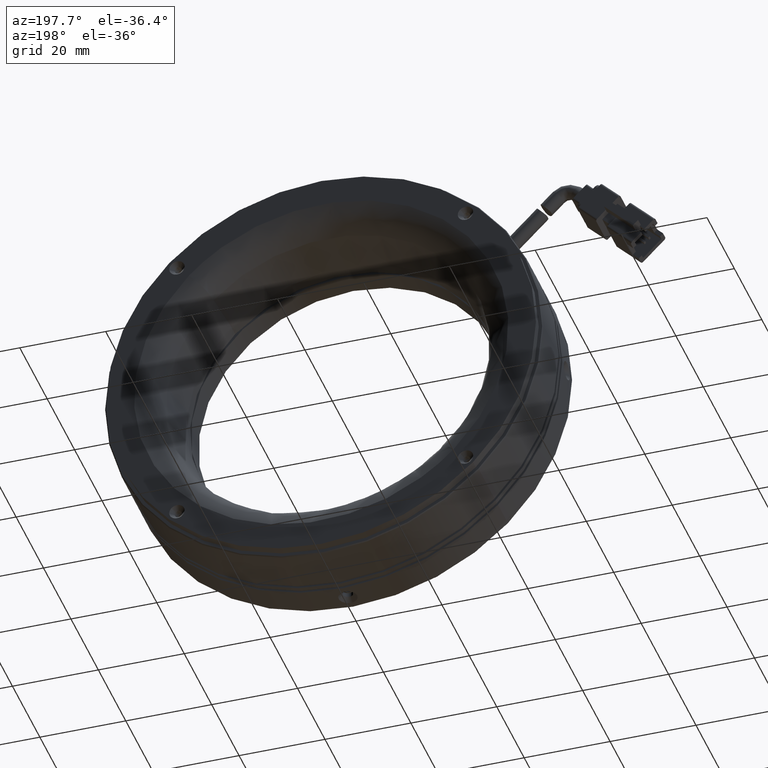
[diagram: clean part render]
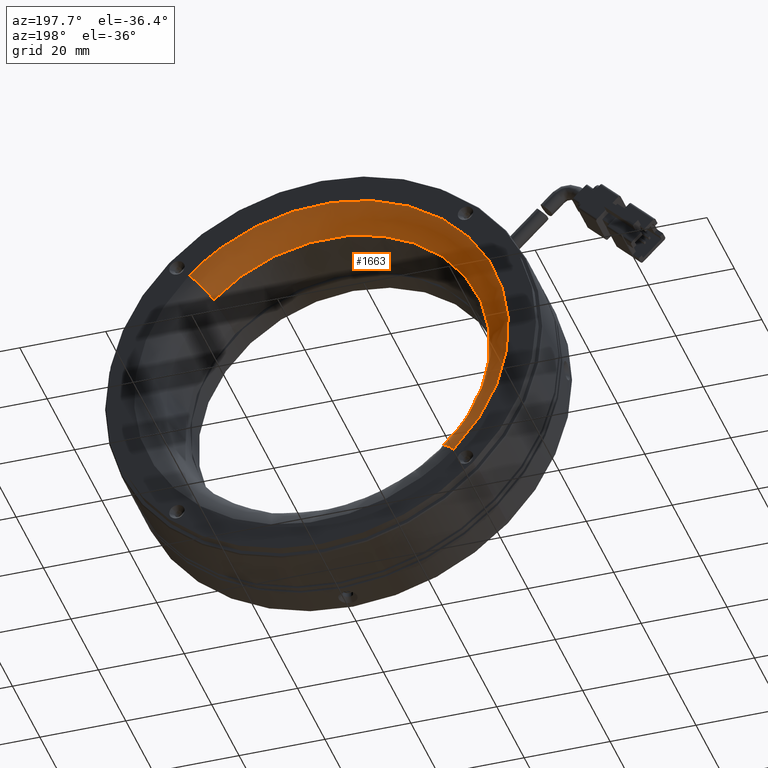
[diagram: same view with one face highlighted and labeled with its STEP entity id]
A machine part, auxiliary view. The second image highlights one B-rep face of the part: STEP entity #1663.
In plain terms, the highlighted face is a freeform B-spline surface patch.
Its self-contained STEP definition (entity closure, byte-faithful):
#1663 = ADVANCED_FACE ( 'NONE', ( #10878 ), #23513, .T. ) ;
#1787 = DIRECTION ( 'NONE',  ( -0.7071067811865485700, 0.0000000000000000000, -0.7071067811865465700 ) ) ;
#3082 = CIRCLE ( 'NONE', #70385, 37.68601622387225100 ) ;
#4335 = CIRCLE ( 'NONE', #26832, 6.000000000000000900 ) ;
#7312 = CARTESIAN_POINT ( 'NONE',  ( -30.82622306972614700, 25.40714717451851000, -30.82622306972638900 ) ) ;
#10878 = FACE_OUTER_BOUND ( 'NONE', #45422, .T. ) ;
#11085 = EDGE_CURVE ( 'NONE', #31171, #34181, #17760, .T. ) ;
#17258 = DIRECTION ( 'NONE',  ( 0.7071067811865464600, -1.045514168352553600E-021, -0.7071067811865485700 ) ) ;
#17515 = CARTESIAN_POINT ( 'NONE',  ( -26.64803762780603300, 20.44903624052007300, -26.64803762780627100 ) ) ;
#17760 = CIRCLE ( 'NONE', #40874, 5.999999999999998200 ) ;
#17788 = EDGE_CURVE ( 'NONE', #34181, #27731, #3082, .T. ) ;
#17818 = CARTESIAN_POINT ( 'NONE',  ( -79.94411288341858300, 20.44903624052007300, 26.64803762780644200 ) ) ;
#18133 = CARTESIAN_POINT ( 'NONE',  ( -26.64803762780585200, 20.44903624052007300, 79.94411288341899500 ) ) ;
#18429 = CARTESIAN_POINT ( 'NONE',  ( 26.64803762780669100, 20.44903624052007300, 26.64803762780628200 ) ) ;
#18739 = CARTESIAN_POINT ( 'NONE',  ( -27.02208363910133600, 23.44903624052008000, -27.02208363910157700 ) ) ;
#19053 = CARTESIAN_POINT ( 'NONE',  ( -81.06625091730448700, 23.44903624052008300, 27.02208363910174800 ) ) ;
#19371 = CARTESIAN_POINT ( 'NONE',  ( -27.02208363910116200, 23.44903624052008300, 81.06625091730488500 ) ) ;
#19666 = CARTESIAN_POINT ( 'NONE',  ( 27.02208363910200000, 23.44903624052008000, 27.02208363910159200 ) ) ;
#19979 = CARTESIAN_POINT ( 'NONE',  ( -28.67217794054107600, 25.40714717451851000, -28.67217794054130300 ) ) ;
#23513 =( BOUNDED_SURFACE ( )  B_SPLINE_SURFACE ( 3, 3, ( 
 ( #33060, #26349, #26035, #25720 ),
 ( #25093, #24775, #24465, #19979 ),
 ( #19666, #19371, #19053, #18739 ),
 ( #18429, #18133, #17818, #17515 ) ),
 .UNSPECIFIED., .F., .F., .F. ) 
 B_SPLINE_SURFACE_WITH_KNOTS ( ( 4, 4 ),
 ( 4, 4 ),
 ( 0.0000000000000000000, 1.000000000000000000 ),
 ( 0.0000000000000000000, 1.000000000000000000 ),
 .UNSPECIFIED. ) 
 GEOMETRIC_REPRESENTATION_ITEM ( )  RATIONAL_B_SPLINE_SURFACE ( (
 ( 1.000000000000000000, 0.3333333333333334300, 0.3333333333333334300, 1.000000000000000000),
 ( 0.8440296287459846400, 0.2813432095819949400, 0.2813432095819949400, 0.8440296287459846400),
 ( 0.8440296287459846400, 0.2813432095819949400, 0.2813432095819949400, 0.8440296287459846400),
 ( 1.000000000000000000, 0.3333333333333334300, 0.3333333333333334300, 1.000000000000000000) ) ) 
 REPRESENTATION_ITEM ( '' )  SURFACE ( )  );
#24465 = CARTESIAN_POINT ( 'NONE',  ( -86.01653382162366800, 25.40714717451850600, 28.67217794054149800 ) ) ;
#24775 = CARTESIAN_POINT ( 'NONE',  ( -28.67217794054088000, 25.40714717451850600, 86.01653382162410800 ) ) ;
#25093 = CARTESIAN_POINT ( 'NONE',  ( 28.67217794054173700, 25.40714717451851000, 28.67217794054131400 ) ) ;
#25720 = CARTESIAN_POINT ( 'NONE',  ( -30.82622306972615800, 25.40714717451851400, -30.82622306972638500 ) ) ;
#26035 = CARTESIAN_POINT ( 'NONE',  ( -92.47866920917891800, 25.40714717451851000, 30.82622306972658800 ) ) ;
#26349 = CARTESIAN_POINT ( 'NONE',  ( -30.82622306972594800, 25.40714717451851000, 92.47866920917935800 ) ) ;
#26832 = AXIS2_PLACEMENT_3D ( 'NONE', #60726, #17258, #68047 ) ;
#27731 = VERTEX_POINT ( 'NONE', #37940 ) ;
#30658 = CARTESIAN_POINT ( 'NONE',  ( 30.82622306972681500, 19.40714717451851000, 30.82622306972639200 ) ) ;
#31171 = VERTEX_POINT ( 'NONE', #65485 ) ;
#31455 = ORIENTED_EDGE ( 'NONE', *, *, #40283, .T. ) ;
#33060 = CARTESIAN_POINT ( 'NONE',  ( 30.82622306972681900, 25.40714717451851400, 30.82622306972639600 ) ) ;
#34181 = VERTEX_POINT ( 'NONE', #77211 ) ;
#36282 = CARTESIAN_POINT ( 'NONE',  ( -92.47866920917891800, 25.40714717451852100, 30.82622306972657400 ) ) ;
#36591 = CARTESIAN_POINT ( 'NONE',  ( 30.82622306972681900, 25.40714717451851000, 30.82622306972639200 ) ) ;
#37940 = CARTESIAN_POINT ( 'NONE',  ( -26.64803762780602300, 20.44903624052007300, -26.64803762780628200 ) ) ;
#37973 = DIRECTION ( 'NONE',  ( 0.7071067811865486800, 0.0000000000000000000, 0.7071067811865463500 ) ) ;
#40283 = EDGE_CURVE ( 'NONE', #59573, #31171, #46022, .T. ) ;
#40874 = AXIS2_PLACEMENT_3D ( 'NONE', #30658, #81525, #37973 ) ;
#45312 = DIRECTION ( 'NONE',  ( 5.593399160027876600E-020, -1.000000000000000000, 5.741257191681600800E-020 ) ) ;
#45422 = EDGE_LOOP ( 'NONE', ( #31455, #79119, #50649, #76760 ) ) ;
#46022 =( BOUNDED_CURVE ( )  B_SPLINE_CURVE ( 3, ( #7312, #36282, #80131, #36591 ),
 .UNSPECIFIED., .F., .F. ) 
 B_SPLINE_CURVE_WITH_KNOTS ( ( 4, 4 ),
 ( 0.0000000000000000000, 1.000000000000000000 ),
 .UNSPECIFIED. ) 
 CURVE ( )  GEOMETRIC_REPRESENTATION_ITEM ( )  RATIONAL_B_SPLINE_CURVE ( ( 1.000000000000000000, 0.3333333333333333700, 0.3333333333333333700, 1.000000000000000000 ) ) 
 REPRESENTATION_ITEM ( '' )  );
#50649 = ORIENTED_EDGE ( 'NONE', *, *, #17788, .T. ) ;
#59573 = VERTEX_POINT ( 'NONE', #87652 ) ;
#60726 = CARTESIAN_POINT ( 'NONE',  ( -30.82622306972614700, 19.40714717451851000, -30.82622306972638900 ) ) ;
#65485 = CARTESIAN_POINT ( 'NONE',  ( 30.82622306972681900, 25.40714717451851000, 30.82622306972639200 ) ) ;
#68047 = DIRECTION ( 'NONE',  ( -0.7071067811865483500, 0.0000000000000000000, -0.7071067811865465700 ) ) ;
#68258 = EDGE_CURVE ( 'NONE', #59573, #27731, #4335, .T. ) ;
#70385 = AXIS2_PLACEMENT_3D ( 'NONE', #88843, #45312, #1787 ) ;
#76760 = ORIENTED_EDGE ( 'NONE', *, *, #68258, .F. ) ;
#77211 = CARTESIAN_POINT ( 'NONE',  ( 26.64803762780669100, 20.44903624052007300, 26.64803762780628200 ) ) ;
#79119 = ORIENTED_EDGE ( 'NONE', *, *, #11085, .T. ) ;
#80131 = CARTESIAN_POINT ( 'NONE',  ( -30.82622306972595500, 25.40714717451852100, 92.47866920917935800 ) ) ;
#81525 = DIRECTION ( 'NONE',  ( -0.7071067811865463500, 1.045514168352555100E-021, 0.7071067811865486800 ) ) ;
#87652 = CARTESIAN_POINT ( 'NONE',  ( -30.82622306972614700, 25.40714717451851000, -30.82622306972638900 ) ) ;
#88843 = CARTESIAN_POINT ( 'NONE',  ( 3.317160594367525600E-013, 20.44903624052007300, 2.765983579064349600E-015 ) ) ;